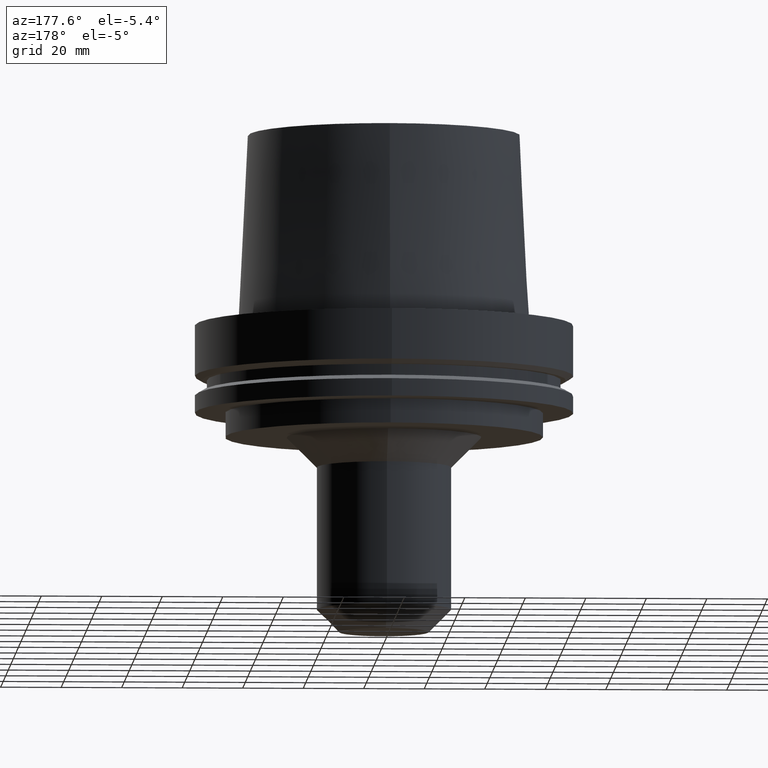
[diagram: clean part render]
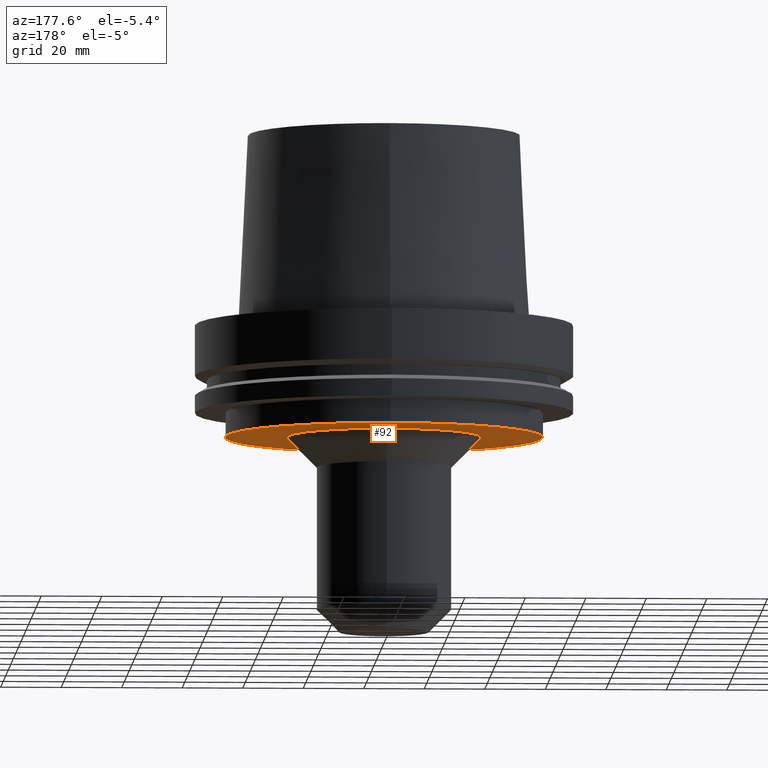
[diagram: same view with one face highlighted and labeled with its STEP entity id]
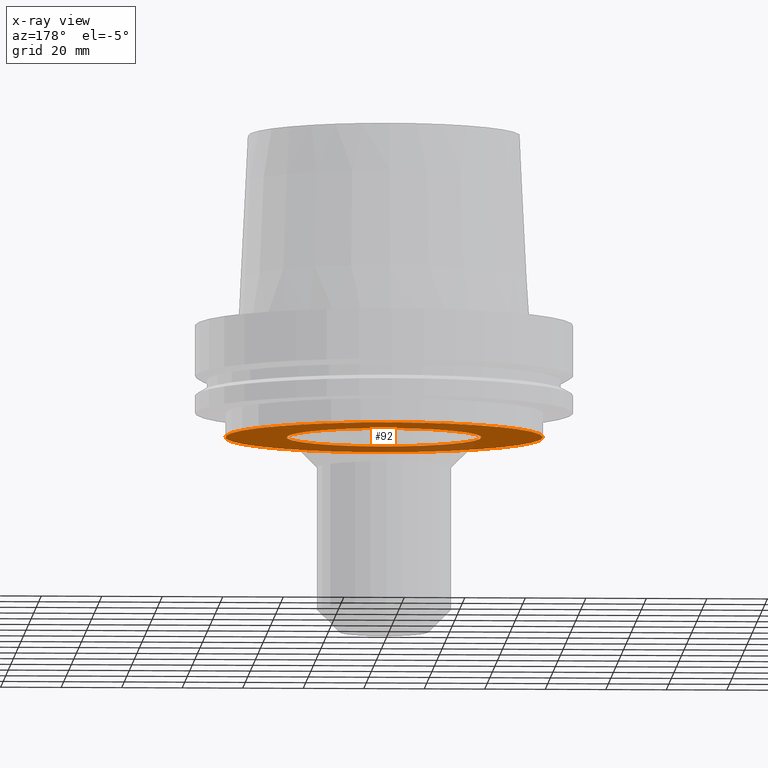
[diagram: x-ray of the same camera — body ghosted, the highlighted face saturated]
A machine part, auxiliary view. The second image highlights one B-rep face of the part: STEP entity #92.
The next image is the same camera in x-ray: the body ghosted, the highlighted face saturated — about 25% of this face is hidden behind the body in this view.
In plain terms, the highlighted planar face has unit normal (0, 0, -1).
Its self-contained STEP definition (entity closure, byte-faithful):
#92=ADVANCED_FACE('Unnamed[1]',(#210,#211),#212,.T.);
#102=EDGE_CURVE('Unnamed[1]',#227,#227,#228,.T.);
#113=EDGE_CURVE('Unnamed[1]',#244,#244,#245,.T.);
#210=FACE_BOUND('',#363,.T.);
#211=FACE_OUTER_BOUND('',#364,.T.);
#212=PLANE('',#365);
#227=VERTEX_POINT('',#384);
#228=CIRCLE('',#385,32.225);
#244=VERTEX_POINT('',#406);
#245=CIRCLE('',#407,52.4999999999998);
#363=EDGE_LOOP('',(#521));
#364=EDGE_LOOP('',(#522));
#365=AXIS2_PLACEMENT_3D('',#523,#524,#525);
#384=CARTESIAN_POINT('',(2.26559657842261E-015,32.225,-37.0));
#385=AXIS2_PLACEMENT_3D('',#541,#542,#543);
#406=CARTESIAN_POINT('',(2.26559657842261E-015,52.4999999999998,-37.0));
#407=AXIS2_PLACEMENT_3D('',#559,#560,#561);
#521=ORIENTED_EDGE('',*,*,#102,.F.);
#522=ORIENTED_EDGE('',*,*,#113,.T.);
#523=CARTESIAN_POINT('',(2.26559657842261E-015,42.3624999999999,-37.0));
#524=DIRECTION('',(6.12323399573677E-017,1.22464679914735E-016,-1.0));
#525=DIRECTION('',(-1.23259516440783E-032,1.0,1.22464679914735E-016));
#541=CARTESIAN_POINT('',(2.26559657842261E-015,4.53119315684521E-015,-37.0));
#542=DIRECTION('',(6.12323399573677E-017,1.22464679914771E-016,-1.0));
#543=DIRECTION('',(-1.23259516440805E-032,1.0,1.22464679914771E-016));
#559=CARTESIAN_POINT('',(2.26559657842261E-015,4.53119315684521E-015,-37.0));
#560=DIRECTION('',(6.12323399573677E-017,1.22464679914709E-016,-1.0));
#561=DIRECTION('',(-1.23259516440784E-032,1.0,1.22464679914709E-016));